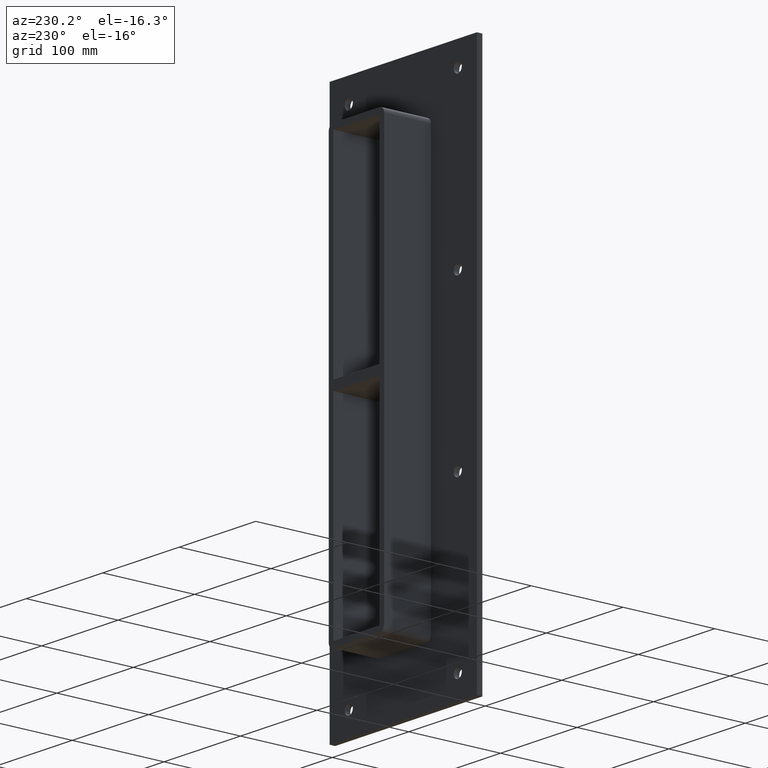
[diagram: clean part render]
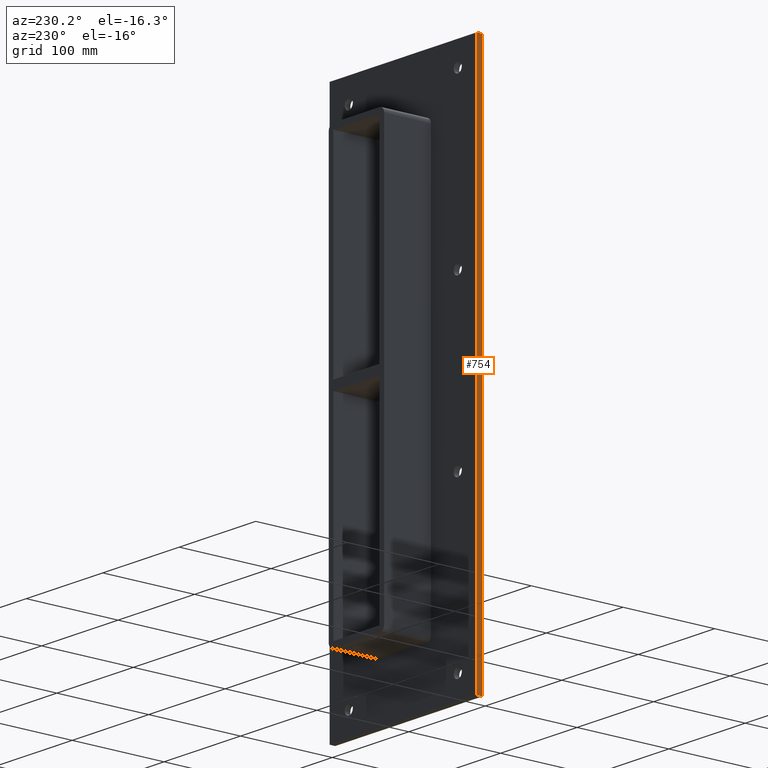
[diagram: same view with one face highlighted and labeled with its STEP entity id]
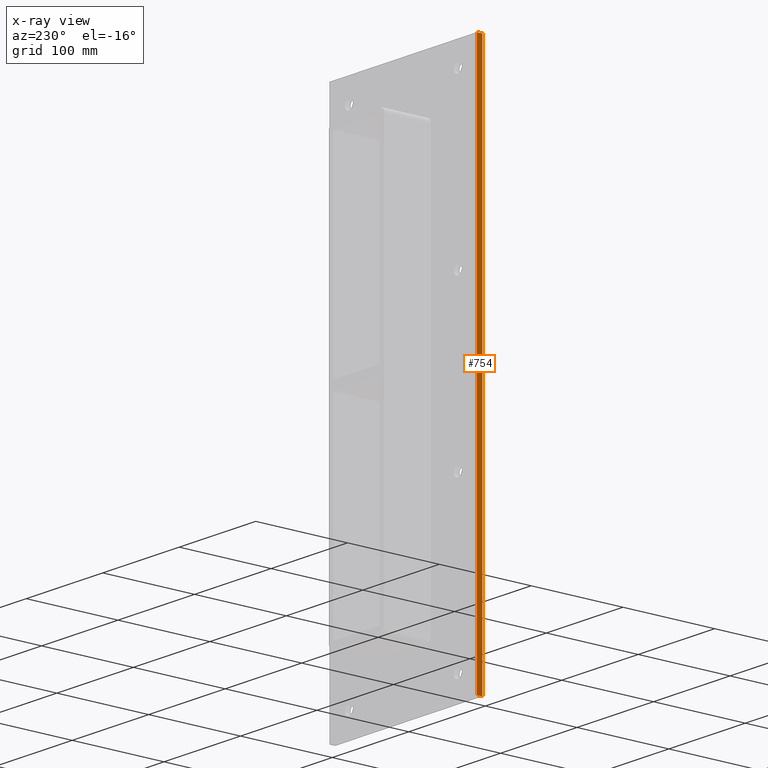
[diagram: x-ray of the same camera — body ghosted, the highlighted face saturated]
A machine part, auxiliary view. The second image highlights one B-rep face of the part: STEP entity #754.
The next image is the same camera in x-ray: the body ghosted, the highlighted face saturated — about 0% of this face is hidden behind the body in this view.
In plain terms, the highlighted planar face has unit normal (-1, 0, 0).
Its self-contained STEP definition (entity closure, byte-faithful):
#470=CARTESIAN_POINT('',(-96.25,6.000000000000001,289.0));
#471=VERTEX_POINT('',#470);
#488=CARTESIAN_POINT('',(-96.25,6.000000000000001,-289.00000000000006));
#489=VERTEX_POINT('',#488);
#496=CARTESIAN_POINT('',(-96.25,6.000000000000001,-289.00000000000006));
#497=DIRECTION('',(0.0,0.0,1.0));
#498=VECTOR('',#497,578.0);
#499=LINE('',#496,#498);
#500=EDGE_CURVE('',#489,#471,#499,.T.);
#604=CARTESIAN_POINT('',(-96.25,0.0,289.0));
#605=VERTEX_POINT('',#604);
#614=CARTESIAN_POINT('',(-96.25,0.0,-289.00000000000006));
#615=VERTEX_POINT('',#614);
#616=CARTESIAN_POINT('',(-96.25,0.0,-289.00000000000006));
#617=DIRECTION('',(0.0,0.0,1.0));
#618=VECTOR('',#617,578.0);
#619=LINE('',#616,#618);
#620=EDGE_CURVE('',#615,#605,#619,.T.);
#733=CARTESIAN_POINT('',(-96.25,0.0,-289.00000000000006));
#734=DIRECTION('',(-1.0,0.0,0.0));
#735=DIRECTION('',(0.0,0.0,1.0));
#736=AXIS2_PLACEMENT_3D('',#733,#734,#735);
#737=PLANE('',#736);
#738=ORIENTED_EDGE('',*,*,#620,.T.);
#739=CARTESIAN_POINT('',(-96.25,0.0,289.0));
#740=DIRECTION('',(0.0,1.0,0.0));
#741=VECTOR('',#740,6.000000000000001);
#742=LINE('',#739,#741);
#743=EDGE_CURVE('',#605,#471,#742,.T.);
#744=ORIENTED_EDGE('',*,*,#743,.T.);
#745=ORIENTED_EDGE('',*,*,#500,.F.);
#746=CARTESIAN_POINT('',(-96.25,0.0,-289.00000000000006));
#747=DIRECTION('',(0.0,1.0,0.0));
#748=VECTOR('',#747,6.000000000000001);
#749=LINE('',#746,#748);
#750=EDGE_CURVE('',#615,#489,#749,.T.);
#751=ORIENTED_EDGE('',*,*,#750,.F.);
#752=EDGE_LOOP('',(#738,#744,#745,#751));
#753=FACE_OUTER_BOUND('',#752,.T.);
#754=ADVANCED_FACE('',(#753),#737,.T.);